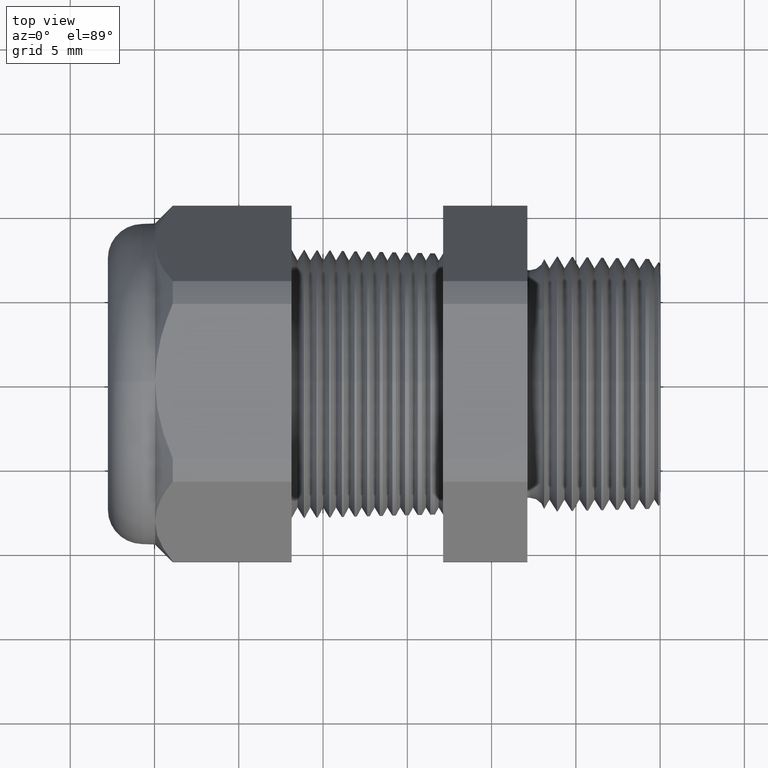
[diagram: clean part render]
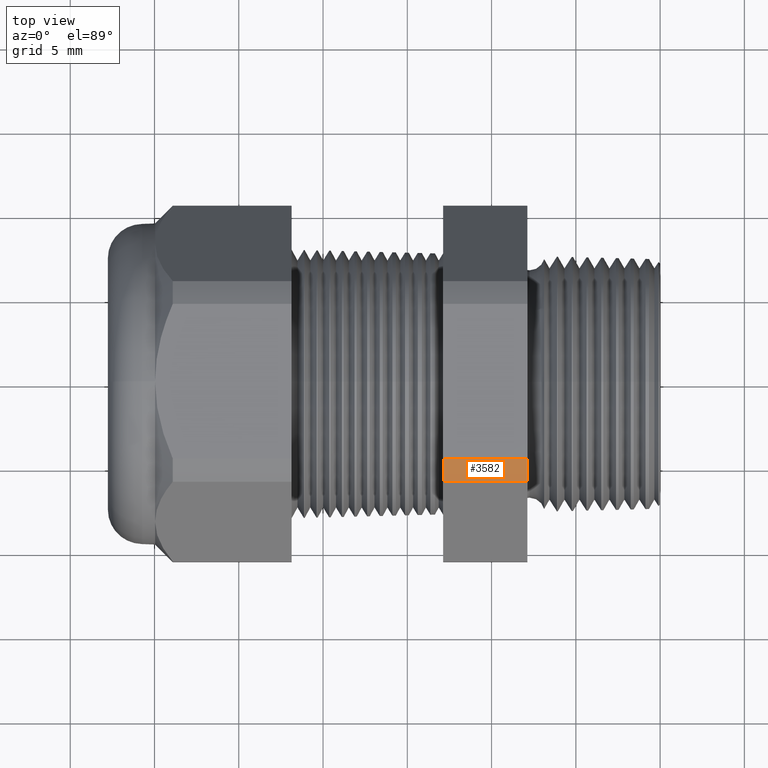
[diagram: same view with one face highlighted and labeled with its STEP entity id]
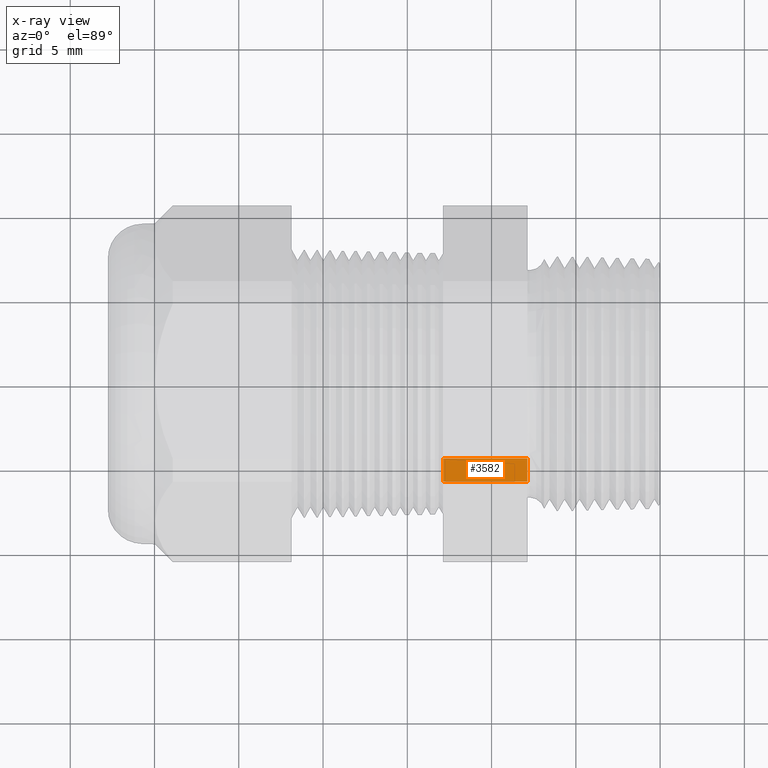
[diagram: x-ray of the same camera — body ghosted, the highlighted face saturated]
A machine part, top view. The second image highlights one B-rep face of the part: STEP entity #3582.
The next image is the same camera in x-ray: the body ghosted, the highlighted face saturated — about 0% of this face is hidden behind the body in this view.
In plain terms, the highlighted cylindrical surface (partial cylindrical patch) has radius 10.5727 mm, axis along (-1, 0, 0).
Its self-contained STEP definition (entity closure, byte-faithful):
#257 = VERTEX_POINT ( 'NONE', #1037 ) ;
#422 = VERTEX_POINT ( 'NONE', #1127 ) ;
#463 = EDGE_CURVE ( 'NONE', #257, #422, #1121, .T. ) ;
#1037 = CARTESIAN_POINT ( 'NONE',  ( -0.3100000000000000000, -0.1806628420566886700, 0.3749999999999999400 ) ) ;
#1117 = DIRECTION ( 'NONE',  ( 0.0000000000000000000, 0.0000000000000000000, -1.000000000000000000 ) ) ;
#1118 = DIRECTION ( 'NONE',  ( 1.000000000000000000, 0.0000000000000000000, 0.0000000000000000000 ) ) ;
#1119 = CARTESIAN_POINT ( 'NONE',  ( -0.3100000000000000000, 0.0000000000000000000, 0.0000000000000000000 ) ) ;
#1120 = AXIS2_PLACEMENT_3D ( 'NONE', #1119, #1118, #1117 ) ;
#1121 = CIRCLE ( 'NONE', #1120, 0.4162500000000000100 ) ;
#1127 = CARTESIAN_POINT ( 'NONE',  ( -0.3100000000000000000, -0.2344281053908205100, 0.3439586107409878200 ) ) ;
#1878 = DIRECTION ( 'NONE',  ( 0.0000000000000000000, 0.0000000000000000000, 1.000000000000000000 ) ) ;
#1879 = DIRECTION ( 'NONE',  ( -1.000000000000000000, 0.0000000000000000000, 0.0000000000000000000 ) ) ;
#1880 = CARTESIAN_POINT ( 'NONE',  ( -0.5068503937007874400, 0.0000000000000000000, 0.0000000000000000000 ) ) ;
#1881 = AXIS2_PLACEMENT_3D ( 'NONE', #1880, #1879, #1878 ) ;
#1882 = CIRCLE ( 'NONE', #1881, 0.4162500000000000100 ) ;
#1883 = CARTESIAN_POINT ( 'NONE',  ( -0.5068503937007874400, -0.1806628420566886700, 0.3749999999999999400 ) ) ;
#1884 = DIRECTION ( 'NONE',  ( -1.000000000000000000, 0.0000000000000000000, 0.0000000000000000000 ) ) ;
#1885 = VECTOR ( 'NONE', #1884, 39.37007874015748100 ) ;
#1886 = CARTESIAN_POINT ( 'NONE',  ( 0.0000000000000000000, -0.1806628420566886700, 0.3749999999999999400 ) ) ;
#1887 = DIRECTION ( 'NONE',  ( 0.0000000000000000000, 0.0000000000000000000, 1.000000000000000000 ) ) ;
#1888 = DIRECTION ( 'NONE',  ( -1.000000000000000000, 0.0000000000000000000, 0.0000000000000000000 ) ) ;
#1889 = CARTESIAN_POINT ( 'NONE',  ( 0.0000000000000000000, 0.0000000000000000000, 0.0000000000000000000 ) ) ;
#1890 = AXIS2_PLACEMENT_3D ( 'NONE', #1889, #1888, #1887 ) ;
#1891 = LINE ( 'NONE', #1886, #1885 ) ;
#1892 = CYLINDRICAL_SURFACE ( 'NONE', #1890, 0.4162500000000000100 ) ;
#1893 = FACE_OUTER_BOUND ( 'NONE', #3583, .T. ) ;
#1916 = CARTESIAN_POINT ( 'NONE',  ( -0.5068503937007874400, -0.2344281053908205100, 0.3439586107409878200 ) ) ;
#1917 = DIRECTION ( 'NONE',  ( -1.000000000000000000, 0.0000000000000000000, 0.0000000000000000000 ) ) ;
#1918 = VECTOR ( 'NONE', #1917, 39.37007874015748100 ) ;
#1919 = CARTESIAN_POINT ( 'NONE',  ( 0.0000000000000000000, -0.2344281053908205100, 0.3439586107409878200 ) ) ;
#1920 = LINE ( 'NONE', #1919, #1918 ) ;
#3582 = ADVANCED_FACE ( 'NONE', ( #1893 ), #1892, .T. ) ;
#3583 = EDGE_LOOP ( 'NONE', ( #3584, #3585, #3586, #3589 ) ) ;
#3584 = ORIENTED_EDGE ( 'NONE', *, *, #3605, .F. ) ;
#3585 = ORIENTED_EDGE ( 'NONE', *, *, #463, .F. ) ;
#3586 = ORIENTED_EDGE ( 'NONE', *, *, #3587, .T. ) ;
#3587 = EDGE_CURVE ( 'NONE', #257, #3588, #1891, .T. ) ;
#3588 = VERTEX_POINT ( 'NONE', #1883 ) ;
#3589 = ORIENTED_EDGE ( 'NONE', *, *, #3590, .F. ) ;
#3590 = EDGE_CURVE ( 'NONE', #3606, #3588, #1882, .T. ) ;
#3605 = EDGE_CURVE ( 'NONE', #422, #3606, #1920, .T. ) ;
#3606 = VERTEX_POINT ( 'NONE', #1916 ) ;